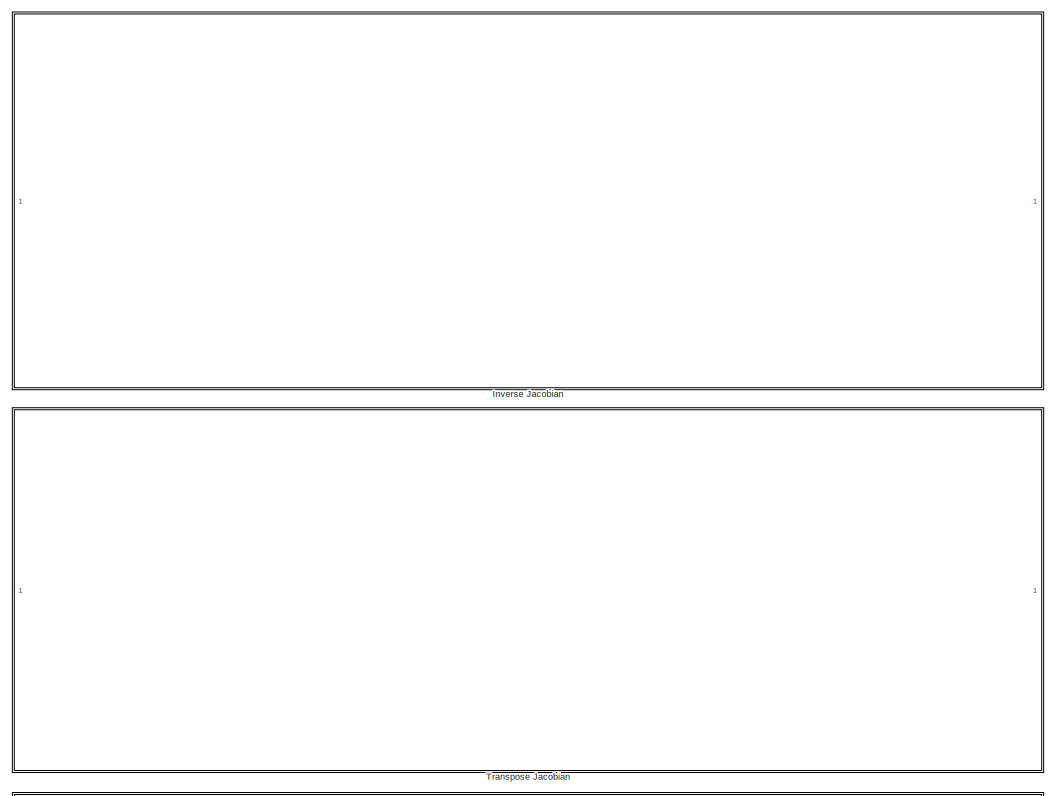
[diagram: root canvas - part 1/2, full width, top band]
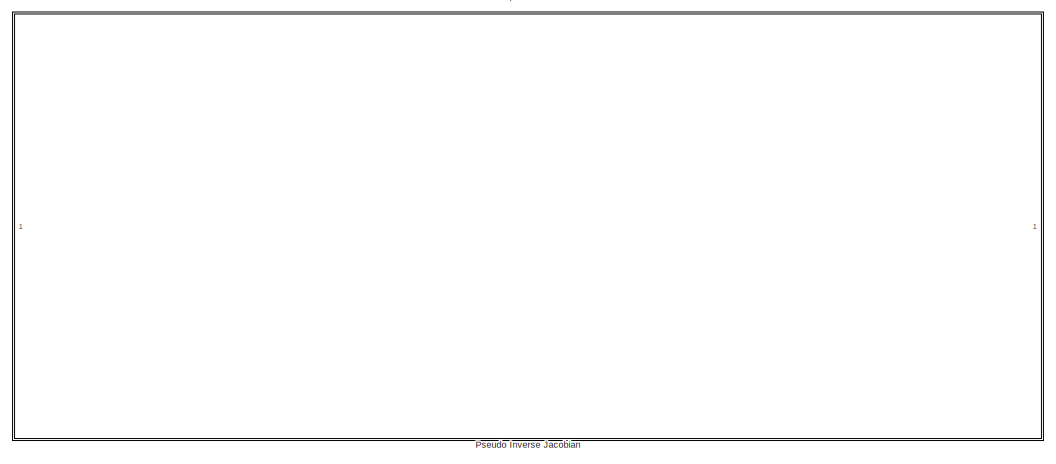
[diagram: root canvas - part 2/2, full width, bottom band]
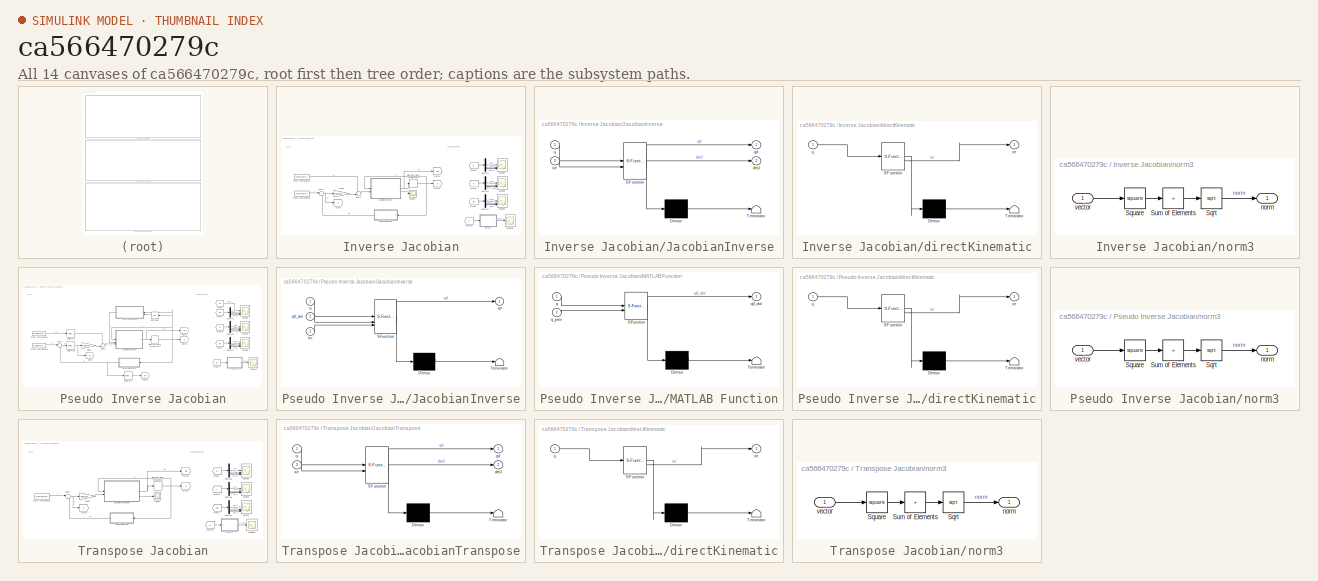
[diagram: thumbnail index - all 14 canvases of the model, root first then tree order]
MODEL slx_ca566470279c
KIND model
CONFIG AbsTol = auto
CONFIG EnableMultiTasking = off
CONFIG FixedStep = auto
CONFIG MaxStep = auto
CONFIG MinStep = auto
CONFIG RelTol = 1e-3
CONFIG SampleTimeConstraint = Unconstrained
CONFIG SolverName = FixedStepAuto
CONFIG StartTime = 0.0
CONFIG StopTime = time(end)
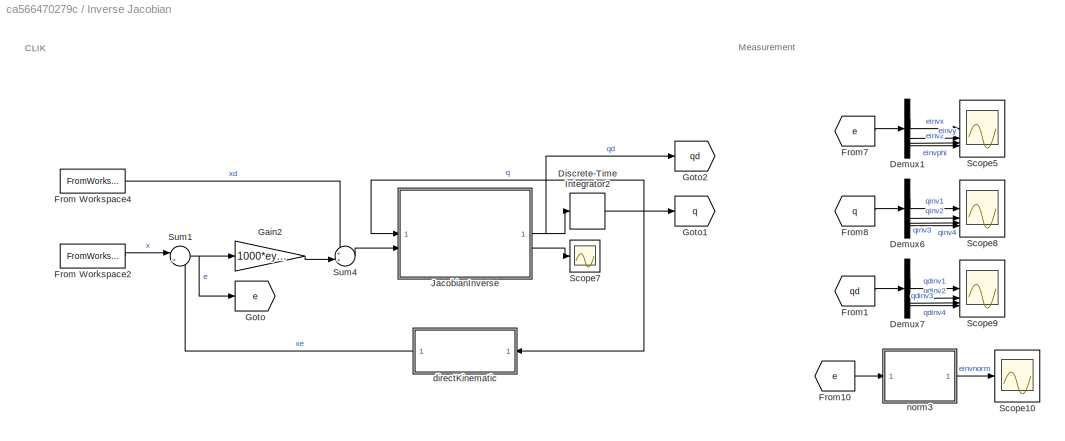
BLOCK [SubSystem] Inverse Jacobian
BLOCK [Demux] Inverse Jacobian/Demux1
BLOCK [Demux] Inverse Jacobian/Demux6
BLOCK [Demux] Inverse Jacobian/Demux7
BLOCK [DiscreteIntegrator] Inverse Jacobian/Discrete-Time Integrator2
  ICPrevOutput = DiscIntNeverNeededParam
  ICPrevScaledInput = DiscIntNeverNeededParam
  InitialCondition = [-1.5706; 0.7851; 0.5000; -0.7855]
  InitialConditionSetting = Auto
  SampleTime = 0.001
BLOCK [FromWorkspace] Inverse Jacobian/From Workspace2
  VariableName = timesample
BLOCK [FromWorkspace] Inverse Jacobian/From Workspace4
  VariableName = timesample_dot
BLOCK [From] Inverse Jacobian/From1
  GotoTag = qd
BLOCK [From] Inverse Jacobian/From10
  GotoTag = e
BLOCK [From] Inverse Jacobian/From7
  GotoTag = e
BLOCK [From] Inverse Jacobian/From8
  GotoTag = q
BLOCK [Gain] Inverse Jacobian/Gain2
  Gain = 1000*eye(4)
  Multiplication = Matrix(K*u)
BLOCK [Goto] Inverse Jacobian/Goto
  GotoTag = e
BLOCK [Goto] Inverse Jacobian/Goto1
  GotoTag = q
BLOCK [Goto] Inverse Jacobian/Goto2
  GotoTag = qd
BLOCK [SubSystem] Inverse Jacobian/JacobianInverse
  ErrorFcn = Stateflow.Translate.translate
  PermitHierarchicalResolution = ExplicitOnly
  SFBlockType = MATLAB Function
  TreatAsAtomicUnit = on
BLOCK [Demux] Inverse Jacobian/JacobianInverse/ Demux 
  Outputs = 1
BLOCK [S-Function] Inverse Jacobian/JacobianInverse/ SFunction 
  EnableBusSupport = on
  FunctionName = sf_sfun
  PortCounts = [2 3]
  SFcnIsStateOwnerBlock = off
  SFunctionDeploymentMode = off
  Tag = Stateflow S-Function 5
BLOCK [Terminator] Inverse Jacobian/JacobianInverse/ Terminator 
BLOCK [Outport] Inverse Jacobian/JacobianInverse/detJ
  Port = 2
BLOCK [Inport] Inverse Jacobian/JacobianInverse/ke
  Port = 2
BLOCK [Inport] Inverse Jacobian/JacobianInverse/q
BLOCK [Outport] Inverse Jacobian/JacobianInverse/qd
BLOCK [Scope] Inverse Jacobian/Scope10
  Floating = off
  NumInputPorts = 1
  ScopeSpecificationString = Simulink.scopes.TimeScopeBlockCfg('CurrentConfiguration', extmgr.ConfigurationSet(extmgr.Configuration('Core','General UI',true),extmgr.Configuration('Core','Source UI',true),extmgr.Configuration('Sources','WiredSimulink',true,'DataLoggingVariableName','ScopeData1'),extmgr.Configuration('Visuals','Time Domain',true,'SerializedDisplays',{struct('MinYLimReal','-0.000002','MaxYLimReal','0.000021','YL...<+1477ch>
BLOCK [Scope] Inverse Jacobian/Scope5
  Floating = off
  NumInputPorts = 4
  ScopeSpecificationString = Simulink.scopes.TimeScopeBlockCfg('CurrentConfiguration', extmgr.ConfigurationSet(extmgr.Configuration('Core','General UI',true),extmgr.Configuration('Core','Source UI',true),extmgr.Configuration('Sources','WiredSimulink',true,'DataLoggingVariableName','ScopeData2'),extmgr.Configuration('Visuals','Time Domain',true,'SerializedDisplays',{struct('MinYLimReal','0.000000000009','MaxYLimReal','0.000000...<+3519ch>
BLOCK [Scope] Inverse Jacobian/Scope7
  Floating = off
  NumInputPorts = 1
  ScopeSpecificationString = Simulink.scopes.TimeScopeBlockCfg('CurrentConfiguration', extmgr.ConfigurationSet(extmgr.Configuration('Core','General UI',true),extmgr.Configuration('Core','Source UI',true),extmgr.Configuration('Sources','WiredSimulink',true,'DataLoggingVariableName','ScopeData6'),extmgr.Configuration('Visuals','Time Domain',true,'SerializedDisplays',{struct('MinYLimReal','0.10937','MaxYLimReal','0.26563','YLabe...<+1405ch>
BLOCK [Scope] Inverse Jacobian/Scope8
  Floating = off
  NumInputPorts = 4
  ScopeSpecificationString = Simulink.scopes.TimeScopeBlockCfg('CurrentConfiguration', extmgr.ConfigurationSet(extmgr.Configuration('Core','General UI',true),extmgr.Configuration('Core','Source UI',true),extmgr.Configuration('Sources','WiredSimulink',true,'DataLoggingVariableName','ScopeData3'),extmgr.Configuration('Visuals','Time Domain',true,'SerializedDisplays',{struct('MinYLimReal','-2.45483','MaxYLimReal','6.38126','YLab...<+1420ch>
BLOCK [Scope] Inverse Jacobian/Scope9
  Floating = off
  NumInputPorts = 4
  ScopeSpecificationString = Simulink.scopes.TimeScopeBlockCfg('CurrentConfiguration', extmgr.ConfigurationSet(extmgr.Configuration('Core','General UI',true),extmgr.Configuration('Core','Source UI',true),extmgr.Configuration('Sources','WiredSimulink',true,'DataLoggingVariableName','ScopeData4'),extmgr.Configuration('Visuals','Time Domain',true,'SerializedDisplays',{struct('MinYLimReal','-1.02448','MaxYLimReal','1.1203','YLabe...<+1467ch>
BLOCK [Sum] Inverse Jacobian/Sum1
  Inputs = |+-
BLOCK [Sum] Inverse Jacobian/Sum4
  Inputs = ++|
BLOCK [SubSystem] Inverse Jacobian/directKinematic
  ErrorFcn = Stateflow.Translate.translate
  NameLocation = top
  PermitHierarchicalResolution = ExplicitOnly
  SFBlockType = MATLAB Function
  TreatAsAtomicUnit = on
BLOCK [Demux] Inverse Jacobian/directKinematic/ Demux 
  Outputs = 1
BLOCK [S-Function] Inverse Jacobian/directKinematic/ SFunction 
  EnableBusSupport = on
  FunctionName = sf_sfun
  PortCounts = [1 2]
  SFcnIsStateOwnerBlock = off
  SFunctionDeploymentMode = off
  Tag = Stateflow S-Function 2
BLOCK [Terminator] Inverse Jacobian/directKinematic/ Terminator 
BLOCK [Inport] Inverse Jacobian/directKinematic/q
BLOCK [Outport] Inverse Jacobian/directKinematic/xe
BLOCK [SubSystem] Inverse Jacobian/norm3
BLOCK [Sqrt] Inverse Jacobian/norm3/Sqrt
BLOCK [Math] Inverse Jacobian/norm3/Square
  Operator = square
BLOCK [Sum] Inverse Jacobian/norm3/Sum of Elements
  IconShape = rectangular
  Inputs = +
BLOCK [Outport] Inverse Jacobian/norm3/norm
BLOCK [Inport] Inverse Jacobian/norm3/vector
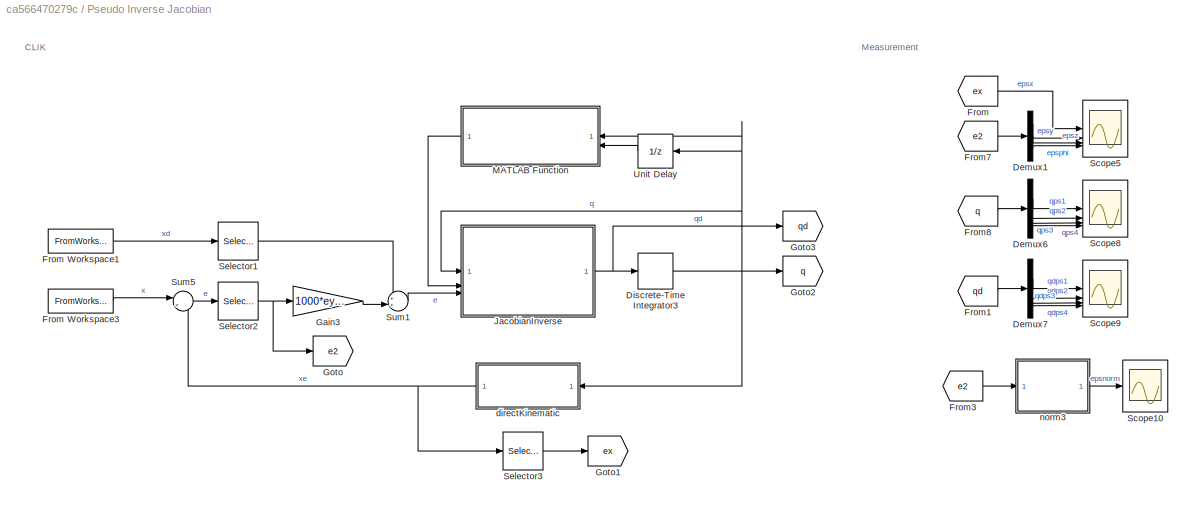
BLOCK [SubSystem] Pseudo Inverse Jacobian
BLOCK [Demux] Pseudo Inverse Jacobian/Demux1
  Outputs = 3
BLOCK [Demux] Pseudo Inverse Jacobian/Demux6
BLOCK [Demux] Pseudo Inverse Jacobian/Demux7
BLOCK [DiscreteIntegrator] Pseudo Inverse Jacobian/Discrete-Time Integrator3
  ICPrevOutput = DiscIntNeverNeededParam
  ICPrevScaledInput = DiscIntNeverNeededParam
  InitialCondition = [-1.5706; 0.7851; 0.5000; -0.7855]
  InitialConditionSetting = Auto
  SampleTime = 0.001
BLOCK [From] Pseudo Inverse Jacobian/From
  GotoTag = ex
BLOCK [FromWorkspace] Pseudo Inverse Jacobian/From Workspace1
  VariableName = timesample_dot
BLOCK [FromWorkspace] Pseudo Inverse Jacobian/From Workspace3
  VariableName = timesample
BLOCK [From] Pseudo Inverse Jacobian/From1
  GotoTag = qd
BLOCK [From] Pseudo Inverse Jacobian/From3
  GotoTag = e2
BLOCK [From] Pseudo Inverse Jacobian/From7
  GotoTag = e2
BLOCK [From] Pseudo Inverse Jacobian/From8
  GotoTag = q
BLOCK [Gain] Pseudo Inverse Jacobian/Gain3
  Gain = 1000*eye(3)
  Multiplication = Matrix(K*u)
BLOCK [Goto] Pseudo Inverse Jacobian/Goto
  GotoTag = e2
BLOCK [Goto] Pseudo Inverse Jacobian/Goto1
  GotoTag = ex
BLOCK [Goto] Pseudo Inverse Jacobian/Goto2
  GotoTag = q
BLOCK [Goto] Pseudo Inverse Jacobian/Goto3
  GotoTag = qd
BLOCK [SubSystem] Pseudo Inverse Jacobian/JacobianInverse
  ErrorFcn = Stateflow.Translate.translate
  PermitHierarchicalResolution = ExplicitOnly
  SFBlockType = MATLAB Function
  TreatAsAtomicUnit = on
BLOCK [Demux] Pseudo Inverse Jacobian/JacobianInverse/ Demux 
  Outputs = 1
BLOCK [S-Function] Pseudo Inverse Jacobian/JacobianInverse/ SFunction 
  EnableBusSupport = on
  FunctionName = sf_sfun
  PortCounts = [3 2]
  SFcnIsStateOwnerBlock = off
  SFunctionDeploymentMode = off
  Tag = Stateflow S-Function 1
BLOCK [Terminator] Pseudo Inverse Jacobian/JacobianInverse/ Terminator 
BLOCK [Inport] Pseudo Inverse Jacobian/JacobianInverse/ke
  Port = 3
BLOCK [Inport] Pseudo Inverse Jacobian/JacobianInverse/q
BLOCK [Inport] Pseudo Inverse Jacobian/JacobianInverse/q0_dot
  Port = 2
BLOCK [Outport] Pseudo Inverse Jacobian/JacobianInverse/qd
BLOCK [SubSystem] Pseudo Inverse Jacobian/MATLAB Function
  ErrorFcn = Stateflow.Translate.translate
  NameLocation = top
  PermitHierarchicalResolution = ExplicitOnly
  SFBlockType = MATLAB Function
  TreatAsAtomicUnit = on
BLOCK [Demux] Pseudo Inverse Jacobian/MATLAB Function/ Demux 
  Outputs = 1
BLOCK [S-Function] Pseudo Inverse Jacobian/MATLAB Function/ SFunction 
  EnableBusSupport = on
  FunctionName = sf_sfun
  PortCounts = [2 2]
  SFcnIsStateOwnerBlock = off
  SFunctionDeploymentMode = off
  Tag = Stateflow S-Function 7
BLOCK [Terminator] Pseudo Inverse Jacobian/MATLAB Function/ Terminator 
BLOCK [Inport] Pseudo Inverse Jacobian/MATLAB Function/q
BLOCK [Outport] Pseudo Inverse Jacobian/MATLAB Function/q0_dot
BLOCK [Inport] Pseudo Inverse Jacobian/MATLAB Function/q_prev
  Port = 2
BLOCK [Scope] Pseudo Inverse Jacobian/Scope10
  Floating = off
  NumInputPorts = 1
  ScopeSpecificationString = Simulink.scopes.TimeScopeBlockCfg('CurrentConfiguration', extmgr.ConfigurationSet(extmgr.Configuration('Core','General UI',true),extmgr.Configuration('Core','Source UI',true),extmgr.Configuration('Sources','WiredSimulink',true,'DataLoggingVariableName','ScopeData9'),extmgr.Configuration('Visuals','Time Domain',true,'SerializedDisplays',{struct('MinYLimReal','-0.000001','MaxYLimReal','0.000012','YL...<+1501ch>
BLOCK [Scope] Pseudo Inverse Jacobian/Scope5
  Floating = off
  NumInputPorts = 4
  ScopeSpecificationString = Simulink.scopes.TimeScopeBlockCfg('CurrentConfiguration', extmgr.ConfigurationSet(extmgr.Configuration('Core','General UI',true),extmgr.Configuration('Core','Source UI',true),extmgr.Configuration('Sources','WiredSimulink',true,'DataLoggingVariableName','ScopeData10'),extmgr.Configuration('Visuals','Time Domain',true,'SerializedDisplays',{struct('MinYLimReal','0.26704','MaxYLimReal','0.91468','YLab...<+3466ch>
BLOCK [Scope] Pseudo Inverse Jacobian/Scope8
  Floating = off
  NumInputPorts = 4
  ScopeSpecificationString = Simulink.scopes.TimeScopeBlockCfg('CurrentConfiguration', extmgr.ConfigurationSet(extmgr.Configuration('Core','General UI',true),extmgr.Configuration('Core','Source UI',true),extmgr.Configuration('Sources','WiredSimulink',true,'DataLoggingVariableName','ScopeData11'),extmgr.Configuration('Visuals','Time Domain',true,'SerializedDisplays',{struct('MinYLimReal','-1.92563','MaxYLimReal','1.44727','YLa...<+1420ch>
BLOCK [Scope] Pseudo Inverse Jacobian/Scope9
  Floating = off
  NumInputPorts = 4
  ScopeSpecificationString = Simulink.scopes.TimeScopeBlockCfg('CurrentConfiguration', extmgr.ConfigurationSet(extmgr.Configuration('Core','General UI',true),extmgr.Configuration('Core','Source UI',true),extmgr.Configuration('Sources','WiredSimulink',true,'DataLoggingVariableName','ScopeData12'),extmgr.Configuration('Visuals','Time Domain',true,'SerializedDisplays',{struct('MinYLimReal','-0.72933','MaxYLimReal','0.4658','YLab...<+1420ch>
BLOCK [Selector] Pseudo Inverse Jacobian/Selector1
  IndexOptions = Index vector (dialog)
  Indices = [2 3 4]
  InputPortWidth = 4
  OutputSizes = 1
BLOCK [Selector] Pseudo Inverse Jacobian/Selector2
  IndexOptions = Index vector (dialog)
  Indices = [2 3 4]
  InputPortWidth = 4
  OutputSizes = 1
BLOCK [Selector] Pseudo Inverse Jacobian/Selector3
  IndexOptions = Index vector (dialog)
  Indices = [1]
  InputPortWidth = 4
  OutputSizes = 1
BLOCK [Sum] Pseudo Inverse Jacobian/Sum1
  Inputs = ++|
BLOCK [Sum] Pseudo Inverse Jacobian/Sum5
  Inputs = |+-
BLOCK [UnitDelay] Pseudo Inverse Jacobian/Unit Delay
  HasFrameUpgradeWarning = on
  NameLocation = top
  SampleTime = -1
BLOCK [SubSystem] Pseudo Inverse Jacobian/directKinematic
  ErrorFcn = Stateflow.Translate.translate
  NameLocation = top
  PermitHierarchicalResolution = ExplicitOnly
  SFBlockType = MATLAB Function
  TreatAsAtomicUnit = on
BLOCK [Demux] Pseudo Inverse Jacobian/directKinematic/ Demux 
  Outputs = 1
BLOCK [S-Function] Pseudo Inverse Jacobian/directKinematic/ SFunction 
  EnableBusSupport = on
  FunctionName = sf_sfun
  PortCounts = [1 2]
  SFcnIsStateOwnerBlock = off
  SFunctionDeploymentMode = off
  Tag = Stateflow S-Function 6
BLOCK [Terminator] Pseudo Inverse Jacobian/directKinematic/ Terminator 
BLOCK [Inport] Pseudo Inverse Jacobian/directKinematic/q
BLOCK [Outport] Pseudo Inverse Jacobian/directKinematic/xe
BLOCK [SubSystem] Pseudo Inverse Jacobian/norm3
BLOCK [Sqrt] Pseudo Inverse Jacobian/norm3/Sqrt
BLOCK [Math] Pseudo Inverse Jacobian/norm3/Square
  Operator = square
BLOCK [Sum] Pseudo Inverse Jacobian/norm3/Sum of Elements
  IconShape = rectangular
  Inputs = +
BLOCK [Outport] Pseudo Inverse Jacobian/norm3/norm
BLOCK [Inport] Pseudo Inverse Jacobian/norm3/vector
BLOCK [SubSystem] Transpose Jacobian
BLOCK [Demux] Transpose Jacobian/Demux1
BLOCK [Demux] Transpose Jacobian/Demux6
BLOCK [Demux] Transpose Jacobian/Demux7
BLOCK [DiscreteIntegrator] Transpose Jacobian/Discrete-Time Integrator1
  ICPrevOutput = DiscIntNeverNeededParam
  ICPrevScaledInput = DiscIntNeverNeededParam
  InitialCondition = [-1.5706; 0.7851; 0.5000; -0.7855]
  InitialConditionSetting = Auto
  SampleTime = 0.001
BLOCK [FromWorkspace] Transpose Jacobian/From Workspace1
  VariableName = timesample
BLOCK [From] Transpose Jacobian/From1
  GotoTag = qd
BLOCK [From] Transpose Jacobian/From10
  GotoTag = e
BLOCK [From] Transpose Jacobian/From7
  GotoTag = e
BLOCK [From] Transpose Jacobian/From8
  GotoTag = q
BLOCK [Gain] Transpose Jacobian/Gain4
  Gain = 500*eye(4)
  Multiplication = Matrix(K*u)
BLOCK [Goto] Transpose Jacobian/Goto3
  GotoTag = e
BLOCK [Goto] Transpose Jacobian/Goto4
  GotoTag = q
BLOCK [Goto] Transpose Jacobian/Goto5
  GotoTag = qd
BLOCK [SubSystem] Transpose Jacobian/JacobianTranspose
  ErrorFcn = Stateflow.Translate.translate
  PermitHierarchicalResolution = ExplicitOnly
  SFBlockType = MATLAB Function
  TreatAsAtomicUnit = on
BLOCK [Demux] Transpose Jacobian/JacobianTranspose/ Demux 
  Outputs = 1
BLOCK [S-Function] Transpose Jacobian/JacobianTranspose/ SFunction 
  EnableBusSupport = on
  FunctionName = sf_sfun
  PortCounts = [2 3]
  SFcnIsStateOwnerBlock = off
  SFunctionDeploymentMode = off
  Tag = Stateflow S-Function 3
BLOCK [Terminator] Transpose Jacobian/JacobianTranspose/ Terminator 
BLOCK [Outport] Transpose Jacobian/JacobianTranspose/detJ
  Port = 2
BLOCK [Inport] Transpose Jacobian/JacobianTranspose/ke
  Port = 2
BLOCK [Inport] Transpose Jacobian/JacobianTranspose/q
BLOCK [Outport] Transpose Jacobian/JacobianTranspose/qd
BLOCK [Scope] Transpose Jacobian/Scope
  Floating = off
  NumInputPorts = 1
  ScopeSpecificationString = Simulink.scopes.TimeScopeBlockCfg('CurrentConfiguration', extmgr.ConfigurationSet(extmgr.Configuration('Core','General UI',true),extmgr.Configuration('Core','Source UI',true),extmgr.Configuration('Sources','WiredSimulink',true,'DataLoggingVariableName','ScopeData5'),extmgr.Configuration('Visuals','Time Domain',true,'SerializedDisplays',{struct('MinYLimReal','-0.27262','MaxYLimReal','-0.04645','YLa...<+1411ch>
BLOCK [Scope] Transpose Jacobian/Scope10
  Floating = off
  NumInputPorts = 1
  ScopeSpecificationString = Simulink.scopes.TimeScopeBlockCfg('CurrentConfiguration', extmgr.ConfigurationSet(extmgr.Configuration('Core','General UI',true),extmgr.Configuration('Core','Source UI',true),extmgr.Configuration('Sources','WiredSimulink',true,'DataLoggingVariableName','ScopeData5'),extmgr.Configuration('Visuals','Time Domain',true,'SerializedDisplays',{struct('MinYLimReal','-0.00094','MaxYLimReal','0.00851','YLab...<+1468ch>
BLOCK [Scope] Transpose Jacobian/Scope5
  Floating = off
  NumInputPorts = 4
  ScopeSpecificationString = Simulink.scopes.TimeScopeBlockCfg('CurrentConfiguration', extmgr.ConfigurationSet(extmgr.Configuration('Core','General UI',true),extmgr.Configuration('Core','Source UI',true),extmgr.Configuration('Sources','WiredSimulink',true,'DataLoggingVariableName','ScopeData6'),extmgr.Configuration('Visuals','Time Domain',true,'SerializedDisplays',{struct('MinYLimReal','-0.00763','MaxYLimReal','0.00534','YLab...<+3417ch>
BLOCK [Scope] Transpose Jacobian/Scope8
  Floating = off
  NumInputPorts = 4
  ScopeSpecificationString = Simulink.scopes.TimeScopeBlockCfg('CurrentConfiguration', extmgr.ConfigurationSet(extmgr.Configuration('Core','General UI',true),extmgr.Configuration('Core','Source UI',true),extmgr.Configuration('Sources','WiredSimulink',true,'DataLoggingVariableName','ScopeData7'),extmgr.Configuration('Visuals','Time Domain',true,'SerializedDisplays',{struct('MinYLimReal','-2.45438','MaxYLimReal','6.38328','YLab...<+1384ch>
BLOCK [Scope] Transpose Jacobian/Scope9
  Floating = off
  NumInputPorts = 4
  ScopeSpecificationString = Simulink.scopes.TimeScopeBlockCfg('CurrentConfiguration', extmgr.ConfigurationSet(extmgr.Configuration('Core','General UI',true),extmgr.Configuration('Core','Source UI',true),extmgr.Configuration('Sources','WiredSimulink',true,'DataLoggingVariableName','ScopeData8'),extmgr.Configuration('Visuals','Time Domain',true,'SerializedDisplays',{struct('MinYLimReal','-1.00642','MaxYLimReal','1.11713','YLab...<+1388ch>
BLOCK [Sum] Transpose Jacobian/Sum2
  Inputs = |+-
BLOCK [SubSystem] Transpose Jacobian/directKinematic
  ErrorFcn = Stateflow.Translate.translate
  NameLocation = top
  PermitHierarchicalResolution = ExplicitOnly
  SFBlockType = MATLAB Function
  TreatAsAtomicUnit = on
BLOCK [Demux] Transpose Jacobian/directKinematic/ Demux 
  Outputs = 1
BLOCK [S-Function] Transpose Jacobian/directKinematic/ SFunction 
  EnableBusSupport = on
  FunctionName = sf_sfun
  PortCounts = [1 2]
  SFcnIsStateOwnerBlock = off
  SFunctionDeploymentMode = off
  Tag = Stateflow S-Function 4
BLOCK [Terminator] Transpose Jacobian/directKinematic/ Terminator 
BLOCK [Inport] Transpose Jacobian/directKinematic/q
BLOCK [Outport] Transpose Jacobian/directKinematic/xe
BLOCK [SubSystem] Transpose Jacobian/norm3
BLOCK [Sqrt] Transpose Jacobian/norm3/Sqrt
BLOCK [Math] Transpose Jacobian/norm3/Square
  Operator = square
BLOCK [Sum] Transpose Jacobian/norm3/Sum of Elements
  IconShape = rectangular
  Inputs = +
BLOCK [Outport] Transpose Jacobian/norm3/norm
BLOCK [Inport] Transpose Jacobian/norm3/vector
ANNOTATION Inverse Jacobian: CLIK
ANNOTATION Inverse Jacobian: Measurement
ANNOTATION Pseudo Inverse Jacobian: CLIK
ANNOTATION Pseudo Inverse Jacobian: Measurement
ANNOTATION Transpose Jacobian: CLIK
ANNOTATION Transpose Jacobian: Measurement
LINE Inverse Jacobian/Demux1:1 -> Inverse Jacobian/Scope5:1
LINE Inverse Jacobian/Demux1:2 -> Inverse Jacobian/Scope5:2
LINE Inverse Jacobian/Demux1:3 -> Inverse Jacobian/Scope5:3
LINE Inverse Jacobian/Demux1:4 -> Inverse Jacobian/Scope5:4
LINE Inverse Jacobian/Demux6:1 -> Inverse Jacobian/Scope8:1
LINE Inverse Jacobian/Demux6:2 -> Inverse Jacobian/Scope8:2
LINE Inverse Jacobian/Demux6:3 -> Inverse Jacobian/Scope8:3
LINE Inverse Jacobian/Demux6:4 -> Inverse Jacobian/Scope8:4
LINE Inverse Jacobian/Demux7:1 -> Inverse Jacobian/Scope9:1
LINE Inverse Jacobian/Demux7:2 -> Inverse Jacobian/Scope9:2
LINE Inverse Jacobian/Demux7:3 -> Inverse Jacobian/Scope9:3
LINE Inverse Jacobian/Demux7:4 -> Inverse Jacobian/Scope9:4
NET Inverse Jacobian/Discrete-Time Integrator2:1 -> Inverse Jacobian/Goto1:1, Inverse Jacobian/JacobianInverse:1, Inverse Jacobian/directKinematic:1
LINE Inverse Jacobian/From Workspace2:1 -> Inverse Jacobian/Sum1:1
LINE Inverse Jacobian/From Workspace4:1 -> Inverse Jacobian/Sum4:1
LINE Inverse Jacobian/From10:1 -> Inverse Jacobian/norm3:1
LINE Inverse Jacobian/From1:1 -> Inverse Jacobian/Demux7:1
LINE Inverse Jacobian/From7:1 -> Inverse Jacobian/Demux1:1
LINE Inverse Jacobian/From8:1 -> Inverse Jacobian/Demux6:1
LINE Inverse Jacobian/Gain2:1 -> Inverse Jacobian/Sum4:2
NET Inverse Jacobian/JacobianInverse:1 -> Inverse Jacobian/Discrete-Time Integrator2:1, Inverse Jacobian/Goto2:1
LINE Inverse Jacobian/JacobianInverse:2 -> Inverse Jacobian/Scope7:1
NET Inverse Jacobian/Sum1:1 -> Inverse Jacobian/Gain2:1, Inverse Jacobian/Goto:1
LINE Inverse Jacobian/Sum4:1 -> Inverse Jacobian/JacobianInverse:2
LINE Inverse Jacobian/directKinematic:1 -> Inverse Jacobian/Sum1:2
LINE Inverse Jacobian/norm3/Sqrt:1 -> Inverse Jacobian/norm3/norm:1
LINE Inverse Jacobian/norm3/Square:1 -> Inverse Jacobian/norm3/Sum of Elements:1
LINE Inverse Jacobian/norm3/Sum of Elements:1 -> Inverse Jacobian/norm3/Sqrt:1
LINE Inverse Jacobian/norm3/vector:1 -> Inverse Jacobian/norm3/Square:1
LINE Inverse Jacobian/norm3:1 -> Inverse Jacobian/Scope10:1
LINE Pseudo Inverse Jacobian/Demux1:1 -> Pseudo Inverse Jacobian/Scope5:2
LINE Pseudo Inverse Jacobian/Demux1:2 -> Pseudo Inverse Jacobian/Scope5:3
LINE Pseudo Inverse Jacobian/Demux1:3 -> Pseudo Inverse Jacobian/Scope5:4
LINE Pseudo Inverse Jacobian/Demux6:1 -> Pseudo Inverse Jacobian/Scope8:1
LINE Pseudo Inverse Jacobian/Demux6:2 -> Pseudo Inverse Jacobian/Scope8:2
LINE Pseudo Inverse Jacobian/Demux6:3 -> Pseudo Inverse Jacobian/Scope8:3
LINE Pseudo Inverse Jacobian/Demux6:4 -> Pseudo Inverse Jacobian/Scope8:4
LINE Pseudo Inverse Jacobian/Demux7:1 -> Pseudo Inverse Jacobian/Scope9:1
LINE Pseudo Inverse Jacobian/Demux7:2 -> Pseudo Inverse Jacobian/Scope9:2
LINE Pseudo Inverse Jacobian/Demux7:3 -> Pseudo Inverse Jacobian/Scope9:3
LINE Pseudo Inverse Jacobian/Demux7:4 -> Pseudo Inverse Jacobian/Scope9:4
NET Pseudo Inverse Jacobian/Discrete-Time Integrator3:1 -> Pseudo Inverse Jacobian/Goto2:1, Pseudo Inverse Jacobian/JacobianInverse:1, Pseudo Inverse Jacobian/MATLAB Function:1, Pseudo Inverse Jacobian/Unit Delay:1, Pseudo Inverse Jacobian/directKinematic:1
LINE Pseudo Inverse Jacobian/From Workspace1:1 -> Pseudo Inverse Jacobian/Selector1:1
LINE Pseudo Inverse Jacobian/From Workspace3:1 -> Pseudo Inverse Jacobian/Sum5:1
LINE Pseudo Inverse Jacobian/From1:1 -> Pseudo Inverse Jacobian/Demux7:1
LINE Pseudo Inverse Jacobian/From3:1 -> Pseudo Inverse Jacobian/norm3:1
LINE Pseudo Inverse Jacobian/From7:1 -> Pseudo Inverse Jacobian/Demux1:1
LINE Pseudo Inverse Jacobian/From8:1 -> Pseudo Inverse Jacobian/Demux6:1
LINE Pseudo Inverse Jacobian/From:1 -> Pseudo Inverse Jacobian/Scope5:1
LINE Pseudo Inverse Jacobian/Gain3:1 -> Pseudo Inverse Jacobian/Sum1:2
NET Pseudo Inverse Jacobian/JacobianInverse:1 -> Pseudo Inverse Jacobian/Discrete-Time Integrator3:1, Pseudo Inverse Jacobian/Goto3:1
LINE Pseudo Inverse Jacobian/MATLAB Function:1 -> Pseudo Inverse Jacobian/JacobianInverse:2
LINE Pseudo Inverse Jacobian/Selector1:1 -> Pseudo Inverse Jacobian/Sum1:1
NET Pseudo Inverse Jacobian/Selector2:1 -> Pseudo Inverse Jacobian/Gain3:1, Pseudo Inverse Jacobian/Goto:1
LINE Pseudo Inverse Jacobian/Selector3:1 -> Pseudo Inverse Jacobian/Goto1:1
LINE Pseudo Inverse Jacobian/Sum1:1 -> Pseudo Inverse Jacobian/JacobianInverse:3
LINE Pseudo Inverse Jacobian/Sum5:1 -> Pseudo Inverse Jacobian/Selector2:1
LINE Pseudo Inverse Jacobian/Unit Delay:1 -> Pseudo Inverse Jacobian/MATLAB Function:2
NET Pseudo Inverse Jacobian/directKinematic:1 -> Pseudo Inverse Jacobian/Selector3:1, Pseudo Inverse Jacobian/Sum5:2
LINE Pseudo Inverse Jacobian/norm3/Sqrt:1 -> Pseudo Inverse Jacobian/norm3/norm:1
LINE Pseudo Inverse Jacobian/norm3/Square:1 -> Pseudo Inverse Jacobian/norm3/Sum of Elements:1
LINE Pseudo Inverse Jacobian/norm3/Sum of Elements:1 -> Pseudo Inverse Jacobian/norm3/Sqrt:1
LINE Pseudo Inverse Jacobian/norm3/vector:1 -> Pseudo Inverse Jacobian/norm3/Square:1
LINE Pseudo Inverse Jacobian/norm3:1 -> Pseudo Inverse Jacobian/Scope10:1
LINE Transpose Jacobian/Demux1:1 -> Transpose Jacobian/Scope5:1
LINE Transpose Jacobian/Demux1:2 -> Transpose Jacobian/Scope5:2
LINE Transpose Jacobian/Demux1:3 -> Transpose Jacobian/Scope5:3
LINE Transpose Jacobian/Demux1:4 -> Transpose Jacobian/Scope5:4
LINE Transpose Jacobian/Demux6:1 -> Transpose Jacobian/Scope8:1
LINE Transpose Jacobian/Demux6:2 -> Transpose Jacobian/Scope8:2
LINE Transpose Jacobian/Demux6:3 -> Transpose Jacobian/Scope8:3
LINE Transpose Jacobian/Demux6:4 -> Transpose Jacobian/Scope8:4
LINE Transpose Jacobian/Demux7:1 -> Transpose Jacobian/Scope9:1
LINE Transpose Jacobian/Demux7:2 -> Transpose Jacobian/Scope9:2
LINE Transpose Jacobian/Demux7:3 -> Transpose Jacobian/Scope9:3
LINE Transpose Jacobian/Demux7:4 -> Transpose Jacobian/Scope9:4
NET Transpose Jacobian/Discrete-Time Integrator1:1 -> Transpose Jacobian/Goto4:1, Transpose Jacobian/JacobianTranspose:1, Transpose Jacobian/directKinematic:1
LINE Transpose Jacobian/From Workspace1:1 -> Transpose Jacobian/Sum2:1
LINE Transpose Jacobian/From10:1 -> Transpose Jacobian/norm3:1
LINE Transpose Jacobian/From1:1 -> Transpose Jacobian/Demux7:1
LINE Transpose Jacobian/From7:1 -> Transpose Jacobian/Demux1:1
LINE Transpose Jacobian/From8:1 -> Transpose Jacobian/Demux6:1
LINE Transpose Jacobian/Gain4:1 -> Transpose Jacobian/JacobianTranspose:2
NET Transpose Jacobian/JacobianTranspose:1 -> Transpose Jacobian/Discrete-Time Integrator1:1, Transpose Jacobian/Goto5:1
LINE Transpose Jacobian/JacobianTranspose:2 -> Transpose Jacobian/Scope:1
NET Transpose Jacobian/Sum2:1 -> Transpose Jacobian/Gain4:1, Transpose Jacobian/Goto3:1
LINE Transpose Jacobian/directKinematic:1 -> Transpose Jacobian/Sum2:2
LINE Transpose Jacobian/norm3/Sqrt:1 -> Transpose Jacobian/norm3/norm:1
LINE Transpose Jacobian/norm3/Square:1 -> Transpose Jacobian/norm3/Sum of Elements:1
LINE Transpose Jacobian/norm3/Sum of Elements:1 -> Transpose Jacobian/norm3/Sqrt:1
LINE Transpose Jacobian/norm3/vector:1 -> Transpose Jacobian/norm3/Square:1
LINE Transpose Jacobian/norm3:1 -> Transpose Jacobian/Scope10:1
note: NET lines group one-source signal fan-out (src -> all destinations, sorted); 1:1 wires keep LINE
CHART Pseudo Inverse Jacobian/JacobianInverse states=1 transitions=1
  STATE_LABEL 'eML_blk_kernel()'
  STATE_LABEL 'SCRIPT:\nfunction qd = inverseJacobian(q, q0_dot, ke) % q = [theta1; theta2]\n\n    % Init the SCARA manipulator parameters\n    a1 = .5; a2 = .5;\n\n    theta1 = q(1,:); theta2 = q(2,:);\n    %% Geometric Jacobian Matrix\n    J = [a1*cos(theta1) + a2*cos(theta1 + theta2), a2*cos(theta1 + theta2), 0, 0;\n        0, 0, -1, 0;\n        1, 1, 0, -1;];\n\n    % Vx = Jx1 * qd1 + Jx2 * qd2 +Jx3 * qd3;\n    % Vy = Jy...<+270ch>'
CHART Inverse Jacobian/directKinematic states=1 transitions=1
  STATE_LABEL 'eML_blk_kernel()'
  STATE_LABEL 'SCRIPT:\nfunction xe = directKinematic(q)\n    \n    %% Init the SCARA manipulator parameters and Joint variables\n    a1 = .5; a2 = .5; d0 = 1;\n    theta1 = q(1,:); theta2 = q(2,:); d3 = q(3,:); theta4 = q(4,:);\n\n    %% Forward Kinematics link for the SCARA\n    k = [a1*cos(theta1) + a2*cos(theta1 + theta2);\n        a1*sin(theta1) + a2*sin(theta1 + theta2);\n        d0 - d3;\n        theta1 + theta2 - t...<+25ch>'
CHART Transpose Jacobian/JacobianTranspose states=1 transitions=1
  STATE_LABEL 'eML_blk_kernel()'
  STATE_LABEL 'SCRIPT:\nfunction [qd, detJ] = JacobianTranspose(q, ke) \n\n    %% Init the SCARA manipulator parameters and Joint variables\n    a1 = .5; a2 = .5;\n    theta1 = q(1,:); theta2 = q(2,:);\n\n    %% Geometric Jacobian Matrix\n    % J = [a1*cos(theta1) + a2*cos(theta1 + theta2), a2*cos(theta1 + theta2), 0, 0;\n    %     0, 0, -1, 0;\n    %     1, 1, 0, -1;];\n\n    J = [-a1*sin(theta1) - a2*sin(theta1 + theta2),...<+403ch>'
CHART Transpose Jacobian/directKinematic states=1 transitions=1
  STATE_LABEL 'eML_blk_kernel()'
  STATE_LABEL 'SCRIPT:\nfunction xe = directKinematic(q)\n    \n    %% Init the SCARA manipulator parameters and Joint variables\n    a1 = .5; a2 = .5; d0 = 1;\n    theta1 = q(1,:); theta2 = q(2,:); d3 = q(3,:); theta4 = q(4,:);\n\n    %% Forward Kinematics link for the SCARA\n    k = [a1*cos(theta1) + a2*cos(theta1 + theta2);\n        a1*sin(theta1) + a2*sin(theta1 + theta2);\n        d0 - d3;\n        theta1 + theta2 - t...<+26ch>'
CHART Inverse Jacobian/JacobianInverse states=1 transitions=1
  STATE_LABEL 'eML_blk_kernel()'
  STATE_LABEL 'SCRIPT:\nfunction [qd, detJ] = inverseJacobian(q, ke) % q = [theta1; theta2]\n\n    % Init the SCARA manipulator parameters\n    a1 = .5; a2 = .5;\n\n    theta1 = q(1,:); theta2 = q(2,:);\n    %% Geometric Jacobian Matrix\n    J = [-a1*sin(theta1) - a2*sin(theta1 + theta2), - a2*sin(theta1 + theta2), 0, 0;\n        a1*cos(theta1) + a2*cos(theta1 + theta2), a2*cos(theta1 + theta2), 0, 0;\n        0, 0, -1, 0...<+267ch>'
CHART Pseudo Inverse Jacobian/directKinematic states=1 transitions=1
  STATE_LABEL 'eML_blk_kernel()'
  STATE_LABEL 'SCRIPT:\nfunction xe = directKinematic(q)\n    \n    %% Init the SCARA manipulator parameters and Joint variables\n    a1 = .5; a2 = .5; d0 = 1;\n    theta1 = q(1,:); theta2 = q(2,:); d3 = q(3,:); theta4 = q(4,:);\n\n    %% Forward Kinematics link for the SCARA\n    k = [a1*cos(theta1) + a2*cos(theta1 + theta2);\n        a1*sin(theta1) + a2*sin(theta1 + theta2);\n        d0 - d3;\n        theta1 + theta2 - t...<+26ch>'
CHART Pseudo Inverse Jacobian/MATLAB Function states=1 transitions=1
  STATE_LABEL 'eML_blk_kernel()'
  STATE_LABEL 'SCRIPT:\nfunction q0_dot = nullVelox(q,q_prev)\n\n    % Init the SCARA manipulator parameters\n    a1 = .5; a2 = .5;\n\n    theta1 = q(1,:); theta2 = q(2,:);\n    theta1_p = q_prev(1,:); theta2_p = q_prev(2,:);\n\n    %% Geometric Jacobian Matrix\n    J = [a1*cos(theta1) + a2*cos(theta1 + theta2), a2*cos(theta1 + theta2), 0, 0;\n        0, 0, -1, 0;\n        1, 1, 0, -1;];\n\n    J = J(1:3,1:3);\n\n    %% Geometr...<+437ch>'
CHART  states=0 transitions=0
CHART  states=0 transitions=0
CHART  states=0 transitions=0
CHART  states=0 transitions=0
CHART  states=0 transitions=0
CHART  states=0 transitions=0
CHART  states=0 transitions=0
